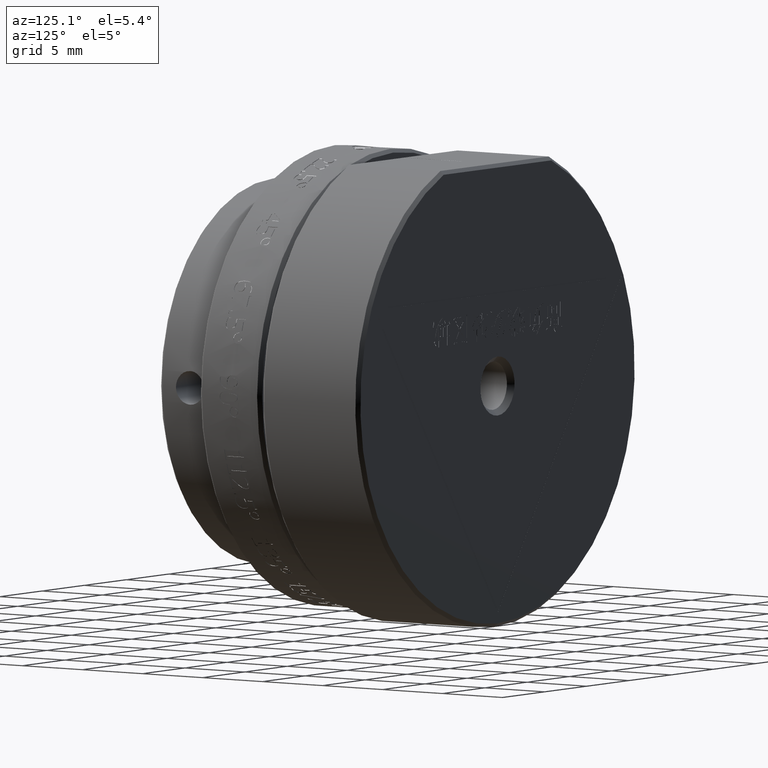
[diagram: clean part render]
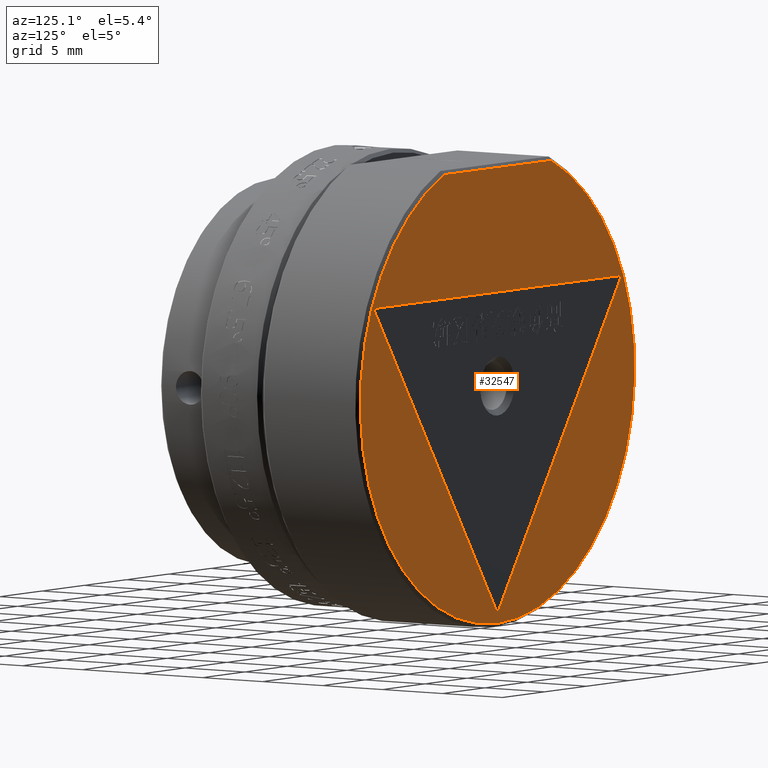
[diagram: same view with one face highlighted and labeled with its STEP entity id]
A machine part, auxiliary view. The second image highlights one B-rep face of the part: STEP entity #32547.
In plain terms, the highlighted planar face has unit normal (0, 1, 0).
Its self-contained STEP definition (entity closure, byte-faithful):
#4265 = CARTESIAN_POINT ( 'NONE',  ( 14.70583493156175692, -0.02003815221192015161, 6.438900000000163715 ) ) ;
#4888 = VERTEX_POINT ( 'NONE', #64245 ) ;
#5717 = VERTEX_POINT ( 'NONE', #48815 ) ;
#5733 = ORIENTED_EDGE ( 'NONE', *, *, #23538, .F. ) ;
#11252 = DIRECTION ( 'NONE',  ( 1.000000000000000000, -0.000000000000000000, -1.474519709395860193E-16 ) ) ;
#14977 = VERTEX_POINT ( 'NONE', #71018 ) ;
#15221 = VECTOR ( 'NONE', #21350, 1000.000000000000000 ) ;
#15326 = VECTOR ( 'NONE', #11252, 1000.000000000000000 ) ;
#15619 = VERTEX_POINT ( 'NONE', #61420 ) ;
#17127 = DIRECTION ( 'NONE',  ( 0.000000000000000000, 0.000000000000000000, 1.000000000000000000 ) ) ;
#18164 = AXIS2_PLACEMENT_3D ( 'NONE', #25486, #25855, #30314 ) ;
#18416 = AXIS2_PLACEMENT_3D ( 'NONE', #28178, #55447, #17127 ) ;
#20883 = EDGE_CURVE ( 'NONE', #28952, #30687, #33884, .T. ) ;
#21076 = ORIENTED_EDGE ( 'NONE', *, *, #70941, .T. ) ;
#21350 = DIRECTION ( 'NONE',  ( 1.000000000000000000, 0.000000000000000000, 0.000000000000000000 ) ) ;
#21693 = CIRCLE ( 'NONE', #18164, 16.25000000000000355 ) ;
#22093 = VECTOR ( 'NONE', #35402, 1000.000000000000114 ) ;
#23246 = ORIENTED_EDGE ( 'NONE', *, *, #50126, .T. ) ;
#23538 = EDGE_CURVE ( 'NONE', #4888, #14977, #33407, .T. ) ;
#24542 = FACE_BOUND ( 'NONE', #57578, .T. ) ;
#24893 = FACE_OUTER_BOUND ( 'NONE', #71970, .T. ) ;
#25354 = EDGE_CURVE ( 'NONE', #14977, #5717, #64122, .T. ) ;
#25486 = CARTESIAN_POINT ( 'NONE',  ( -1.041037131337824664E-13, -0.02003815221192015161, 1.685092966431067047E-13 ) ) ;
#25855 = DIRECTION ( 'NONE',  ( 0.000000000000000000, 1.000000000000000000, 0.000000000000000000 ) ) ;
#28178 = CARTESIAN_POINT ( 'NONE',  ( -1.041037131337824664E-13, -0.02003815221192015161, 1.685092966431067047E-13 ) ) ;
#28952 = VERTEX_POINT ( 'NONE', #53338 ) ;
#30314 = DIRECTION ( 'NONE',  ( 0.000000000000000000, 0.000000000000000000, 1.000000000000000000 ) ) ;
#30687 = VERTEX_POINT ( 'NONE', #68183 ) ;
#30971 = DIRECTION ( 'NONE',  ( -0.5558102120856902584, -0.000000000000000000, -0.8313092133143118456 ) ) ;
#31293 = CARTESIAN_POINT ( 'NONE',  ( -14.70583493156196653, -0.02003815221192015161, 6.438900000000168156 ) ) ;
#32547 = ADVANCED_FACE ( 'NONE', ( #24893, #24542 ), #62882, .T. ) ;
#33407 = LINE ( 'NONE', #4265, #15326 ) ;
#33884 = LINE ( 'NONE', #55586, #15221 ) ;
#34928 = CARTESIAN_POINT ( 'NONE',  ( -1.041037131337824664E-13, -0.02003815221192015161, 1.685092966431067047E-13 ) ) ;
#35402 = DIRECTION ( 'NONE',  ( -0.5558102120856903694, -0.000000000000000000, 0.8313092133143118456 ) ) ;
#36117 = LINE ( 'NONE', #31293, #22093 ) ;
#40145 = VECTOR ( 'NONE', #30971, 1000.000000000000000 ) ;
#46722 = DIRECTION ( 'NONE',  ( 0.000000000000000000, 1.000000000000000000, 0.000000000000000000 ) ) ;
#47927 = ORIENTED_EDGE ( 'NONE', *, *, #20883, .T. ) ;
#48815 = CARTESIAN_POINT ( 'NONE',  ( -1.045373940027766682E-13, -0.02003815221192015161, -15.55619077426227470 ) ) ;
#50126 = EDGE_CURVE ( 'NONE', #15619, #28952, #65485, .T. ) ;
#53338 = CARTESIAN_POINT ( 'NONE',  ( -6.368673331236379020, -0.02003815221192015161, 14.95000000000016627 ) ) ;
#55069 = EDGE_CURVE ( 'NONE', #5717, #4888, #36117, .T. ) ;
#55447 = DIRECTION ( 'NONE',  ( 0.000000000000000000, 1.000000000000000000, 0.000000000000000000 ) ) ;
#55586 = CARTESIAN_POINT ( 'NONE',  ( 6.419501538281523700, -0.02003815221192015161, 14.95000000000016627 ) ) ;
#56272 = ORIENTED_EDGE ( 'NONE', *, *, #25354, .F. ) ;
#57578 = EDGE_LOOP ( 'NONE', ( #66448, #56272, #5733 ) ) ;
#61420 = CARTESIAN_POINT ( 'NONE',  ( -1.041037131337824664E-13, -0.02003815221192015161, -16.24999999999983302 ) ) ;
#62882 = PLANE ( 'NONE',  #70719 ) ;
#64122 = LINE ( 'NONE', #70748, #40145 ) ;
#64245 = CARTESIAN_POINT ( 'NONE',  ( -14.70583493156196830, -0.02003815221192015161, 6.438900000000167267 ) ) ;
#65485 = CIRCLE ( 'NONE', #18416, 16.25000000000000355 ) ;
#66448 = ORIENTED_EDGE ( 'NONE', *, *, #55069, .F. ) ;
#68183 = CARTESIAN_POINT ( 'NONE',  ( 6.368673331236170299, -0.02003815221192015161, 14.95000000000016627 ) ) ;
#69154 = DIRECTION ( 'NONE',  ( 0.000000000000000000, -0.000000000000000000, 1.000000000000000000 ) ) ;
#70719 = AXIS2_PLACEMENT_3D ( 'NONE', #34928, #46722, #69154 ) ;
#70748 = CARTESIAN_POINT ( 'NONE',  ( -1.045373940027766682E-13, -0.02003815221192015161, -15.55619077426227470 ) ) ;
#70941 = EDGE_CURVE ( 'NONE', #30687, #15619, #21693, .T. ) ;
#71018 = CARTESIAN_POINT ( 'NONE',  ( 14.70583493156175692, -0.02003815221192015161, 6.438900000000163715 ) ) ;
#71970 = EDGE_LOOP ( 'NONE', ( #21076, #23246, #47927 ) ) ;